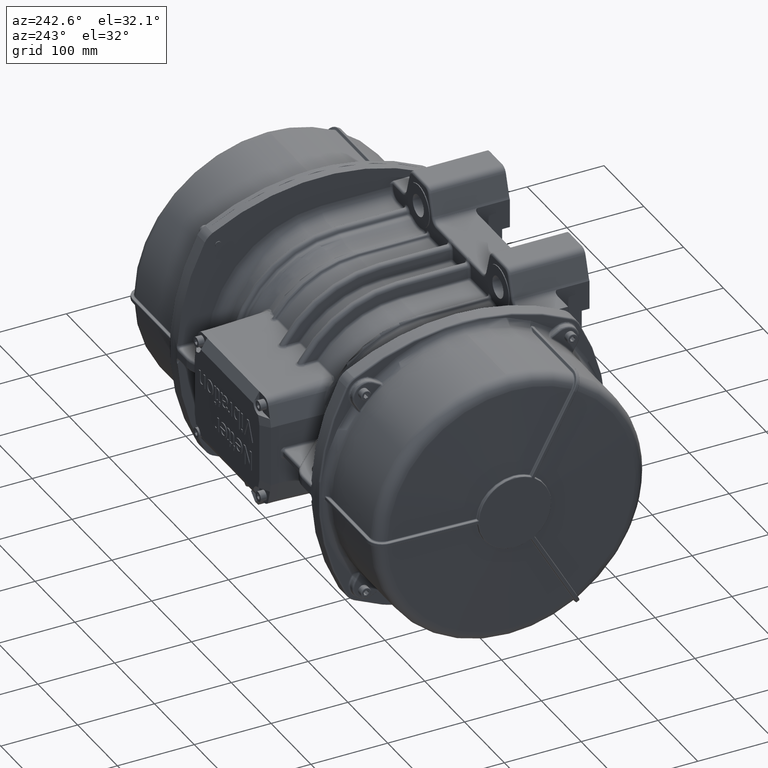
[diagram: clean part render]
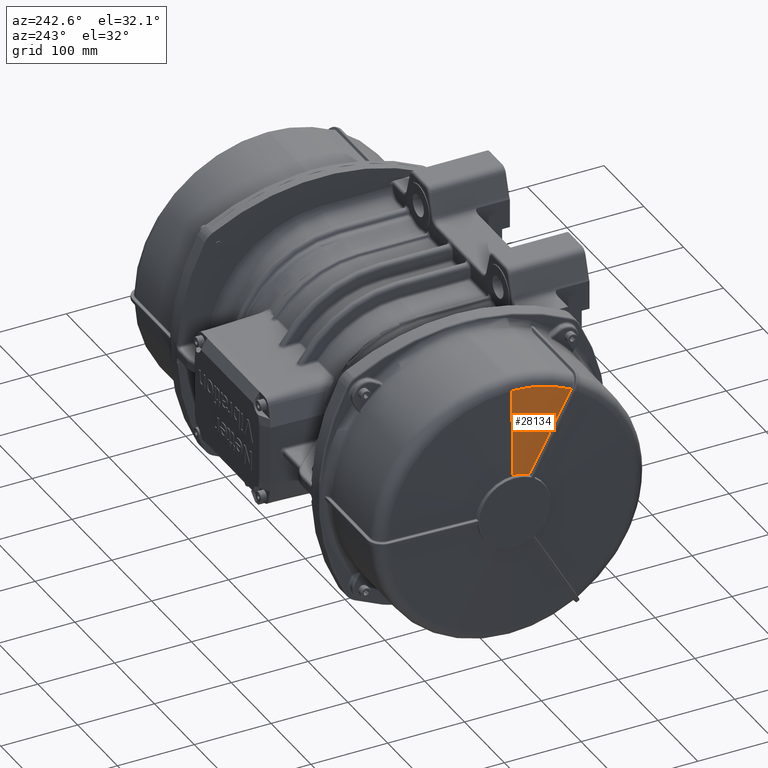
[diagram: same view with one face highlighted and labeled with its STEP entity id]
A machine part, auxiliary view. The second image highlights one B-rep face of the part: STEP entity #28134.
In plain terms, the highlighted conical surface has half-angle 88 deg.
Its self-contained STEP definition (entity closure, byte-faithful):
#2403 = DIRECTION ( 'NONE',  ( 0.0000000000000000000, 0.0000000000000000000, 1.000000000000000000 ) ) ;
#2404 = DIRECTION ( 'NONE',  ( -1.000000000000000000, 0.0000000000000000000, 0.0000000000000000000 ) ) ;
#2405 = AXIS2_PLACEMENT_3D ( 'NONE', #2406, #2404, #2403 ) ;
#2406 = CARTESIAN_POINT ( 'NONE',  ( -313.6662979477880000, 192.0000000000000000, 0.0000000000000000000 ) ) ;
#3138 = CARTESIAN_POINT ( 'NONE',  ( -313.6662979477880000, 170.8595388175364700, 43.61131582270235200 ) ) ;
#3158 = CARTESIAN_POINT ( 'NONE',  ( -313.6662979477880000, 192.0000000000000000, 48.46510050329749200 ) ) ;
#3240 = CIRCLE ( 'NONE', #2405, 48.46510050329749900 ) ;
#3804 = DIRECTION ( 'NONE',  ( 0.03489949670249399600, 0.0000000000000000000, 0.9993908270190958700 ) ) ;
#3805 = VECTOR ( 'NONE', #3804, 1000.000000000000100 ) ;
#3806 = CARTESIAN_POINT ( 'NONE',  ( -309.2126811203114600, 192.0000000000000000, 176.0000000000000000 ) ) ;
#3807 = LINE ( 'NONE', #3806, #3805 ) ;
#8698 = VERTEX_POINT ( 'NONE', #38098 ) ;
#28098 = ORIENTED_EDGE ( 'NONE', *, *, #55292, .F. ) ;
#28099 = EDGE_CURVE ( 'NONE', #28100, #52036, #48874, .T. ) ;
#28100 = VERTEX_POINT ( 'NONE', #48883 ) ;
#28110 = EDGE_LOOP ( 'NONE', ( #28098, #28133, #28136, #28135 ) ) ;
#28111 = EDGE_CURVE ( 'NONE', #8698, #28100, #48913, .T. ) ;
#28133 = ORIENTED_EDGE ( 'NONE', *, *, #52912, .F. ) ;
#28134 = ADVANCED_FACE ( 'NONE', ( #48943 ), #48933, .T. ) ;
#28135 = ORIENTED_EDGE ( 'NONE', *, *, #28111, .F. ) ;
#28136 = ORIENTED_EDGE ( 'NONE', *, *, #28099, .F. ) ;
#38098 = CARTESIAN_POINT ( 'NONE',  ( -309.7182119034915200, 192.0000000000000000, 161.5234924505424200 ) ) ;
#48857 = CARTESIAN_POINT ( 'NONE',  ( -313.6662979477880000, 170.8595388175364700, 43.61131582270235200 ) ) ;
#48858 = CARTESIAN_POINT ( 'NONE',  ( -312.8399881760605600, 158.9985114248968000, 64.15767539266821000 ) ) ;
#48859 = CARTESIAN_POINT ( 'NONE',  ( -312.0116367433616300, 147.1365125524095300, 84.70339198224608900 ) ) ;
#48860 = CARTESIAN_POINT ( 'NONE',  ( -311.1835268382485000, 135.2746277804963900, 105.2491841029952000 ) ) ;
#48861 = CARTESIAN_POINT ( 'NONE',  ( -310.8114246958031700, 129.9446193965668500, 114.4812114210623300 ) ) ;
#48862 = CARTESIAN_POINT ( 'NONE',  ( -310.4392819075445100, 124.6145916025675300, 123.7132258947048900 ) ) ;
#48863 = CARTESIAN_POINT ( 'NONE',  ( -310.0671197093894900, 119.2845545363964000, 132.9452342325594100 ) ) ;
#48864 = CARTESIAN_POINT ( 'NONE',  ( -309.9740791598511000, 117.9520452698588900, 135.2532363170139100 ) ) ;
#48865 = CARTESIAN_POINT ( 'NONE',  ( -309.8810373071863200, 116.6195353808627300, 137.5612379895646600 ) ) ;
#48866 = CARTESIAN_POINT ( 'NONE',  ( -309.7879943378535500, 115.2870249584492100, 139.8692393091332100 ) ) ;
#48867 = CARTESIAN_POINT ( 'NONE',  ( -309.7647335955204000, 114.9538973528458600, 140.4462396390252600 ) ) ;
#48868 = CARTESIAN_POINT ( 'NONE',  ( -309.7414727832115800, 114.6207697138160200, 141.0232399467978200 ) ) ;
#48869 = CARTESIAN_POINT ( 'NONE',  ( -309.7182119034915200, 114.2876420425845900, 141.6002402332613900 ) ) ;
#48874 = B_SPLINE_CURVE_WITH_KNOTS ( 'NONE', 3,
 ( #48869, #48868, #48867, #48866, #48865, #48864, #48863, #48862, #48861, #48860, #48859, #48858, #48857 ),
 .UNSPECIFIED., .F., .F.,
 ( 4, 3, 3, 3, 4 ),
 ( 0.0000000000000000000, 0.002000000000000057700, 0.01000000000000211800, 0.04200000000026345200, 0.1132157065209002900 ),
 .UNSPECIFIED. ) ;
#48883 = CARTESIAN_POINT ( 'NONE',  ( -309.7182119034915200, 114.2876420425845900, 141.6002402332613900 ) ) ;
#48901 = DIRECTION ( 'NONE',  ( 0.0000000000000000000, 0.0000000000000000000, 1.000000000000000000 ) ) ;
#48902 = DIRECTION ( 'NONE',  ( 1.000000000000000000, -0.0000000000000000000, -0.0000000000000000000 ) ) ;
#48903 = CARTESIAN_POINT ( 'NONE',  ( -309.7182119034915200, 192.0000000000000000, 0.0000000000000000000 ) ) ;
#48913 = CIRCLE ( 'NONE', #48914, 161.5234924505374700 ) ;
#48914 = AXIS2_PLACEMENT_3D ( 'NONE', #48903, #48902, #48901 ) ;
#48933 = CONICAL_SURFACE ( 'NONE', #48968, 176.0000000000000000, 1.535889741755017000 ) ;
#48943 = FACE_OUTER_BOUND ( 'NONE', #28110, .T. ) ;
#48958 = DIRECTION ( 'NONE',  ( 0.0000000000000000000, 0.0000000000000000000, 1.000000000000000000 ) ) ;
#48962 = DIRECTION ( 'NONE',  ( 1.000000000000000000, 0.0000000000000000000, 0.0000000000000000000 ) ) ;
#48963 = CARTESIAN_POINT ( 'NONE',  ( -309.2126811203114600, 192.0000000000000000, 0.0000000000000000000 ) ) ;
#48968 = AXIS2_PLACEMENT_3D ( 'NONE', #48963, #48962, #48958 ) ;
#52036 = VERTEX_POINT ( 'NONE', #3138 ) ;
#52145 = VERTEX_POINT ( 'NONE', #3158 ) ;
#52912 = EDGE_CURVE ( 'NONE', #52036, #52145, #3240, .T. ) ;
#55292 = EDGE_CURVE ( 'NONE', #52145, #8698, #3807, .T. ) ;